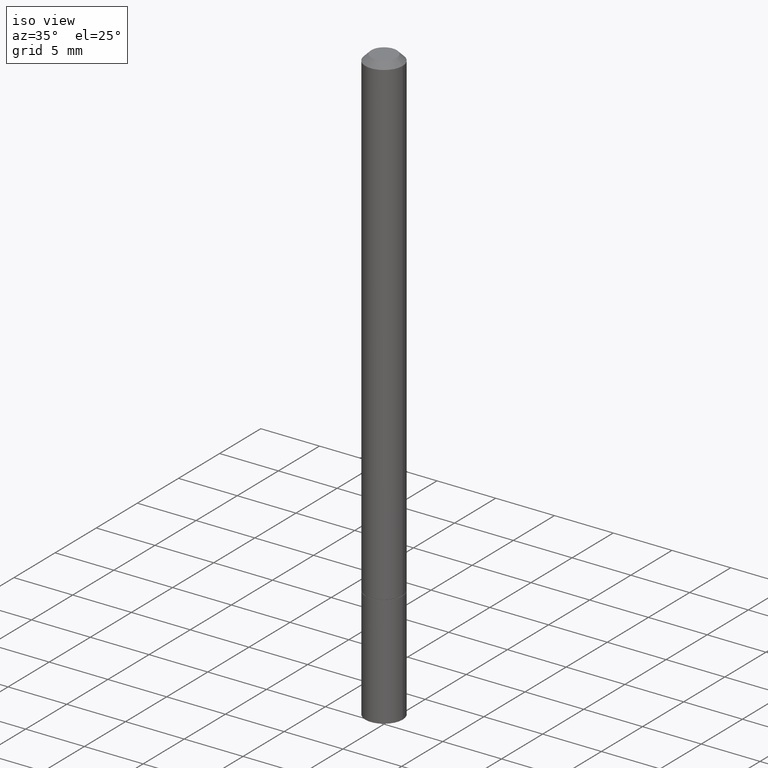
[diagram: clean part render]
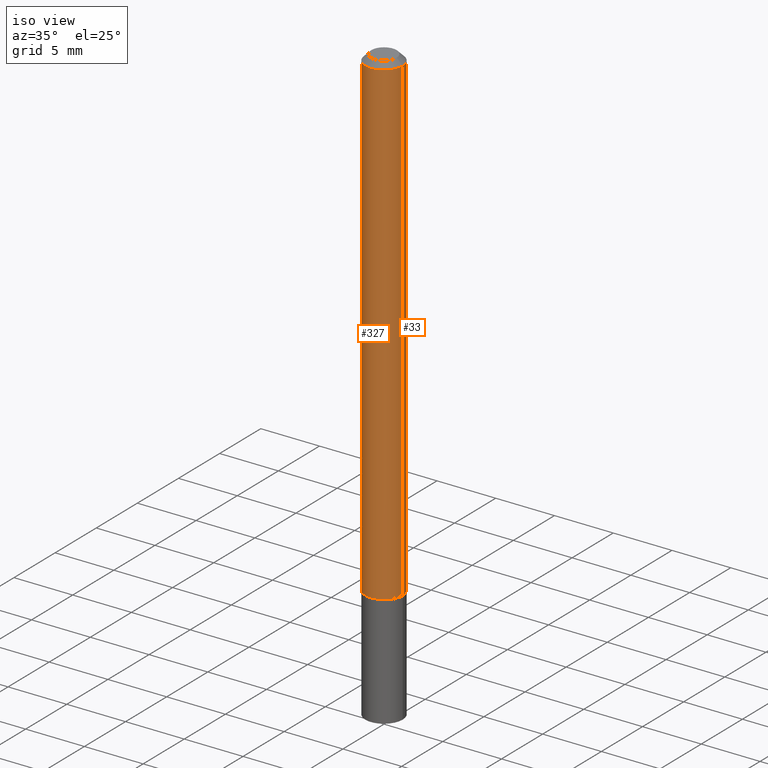
[diagram: same view with one multi-face feature highlighted, each face labeled with its STEP entity id]
A machine part, iso view. The highlighted faces form ONE feature: a constant-radius fillet chain: 2 tangent blend faces with common blend radius 1.5875 mm. The faces share edges in the B-rep.
Their STEP definitions:
[1] entity #33 (Cylinder):
#16 = VERTEX_POINT ( 'NONE', #274 ) ;
#20 = AXIS2_PLACEMENT_3D ( 'NONE', #211, #288, #155 ) ;
#31 = CARTESIAN_POINT ( 'NONE',  ( -0.06249999999999991673, 4.440892098500620245E-16, -3.074334431409311910E-30 ) ) ;
#33 = ADVANCED_FACE ( 'NONE', ( #104 ), #166, .T. ) ;
#37 = DIRECTION ( 'NONE',  ( -2.445468806185136877E-29, 3.491481338843145188E-15, 1.000000000000000000 ) ) ;
#38 = ORIENTED_EDGE ( 'NONE', *, *, #50, .F. ) ;
#44 = CARTESIAN_POINT ( 'NONE',  ( 0.000000000000000000, 0.000000000000000000, 0.000000000000000000 ) ) ;
#50 = EDGE_CURVE ( 'NONE', #16, #259, #73, .T. ) ;
#63 = EDGE_LOOP ( 'NONE', ( #268, #147, #215, #38 ) ) ;
#72 = DIRECTION ( 'NONE',  ( 1.000000000000000000, -6.982962677686266711E-15, 0.000000000000000000 ) ) ;
#73 = LINE ( 'NONE', #250, #219 ) ;
#78 = CARTESIAN_POINT ( 'NONE',  ( 4.890937612370274910E-31, -6.982962677686295307E-17, -0.02000000000000000736 ) ) ;
#79 = AXIS2_PLACEMENT_3D ( 'NONE', #78, #130, #72 ) ;
#95 = VERTEX_POINT ( 'NONE', #301 ) ;
#96 = CARTESIAN_POINT ( 'NONE',  ( -0.06250000000000001388, -2.425908450678998508E-15, -1.623999999999999888 ) ) ;
#104 = FACE_OUTER_BOUND ( 'NONE', #63, .T. ) ;
#130 = DIRECTION ( 'NONE',  ( -2.445468806185136597E-29, 3.491481338843145583E-15, 1.000000000000000000 ) ) ;
#138 = EDGE_CURVE ( 'NONE', #259, #95, #196, .T. ) ;
#147 = ORIENTED_EDGE ( 'NONE', *, *, #349, .T. ) ;
#155 = DIRECTION ( 'NONE',  ( 1.000000000000000000, -6.982962677686261189E-15, 0.000000000000000000 ) ) ;
#166 = CYLINDRICAL_SURFACE ( 'NONE', #202, 0.06249999999999991673 ) ;
#190 = DIRECTION ( 'NONE',  ( -2.445468806185136877E-29, 3.491481338843145188E-15, 1.000000000000000000 ) ) ;
#196 = CIRCLE ( 'NONE', #79, 0.06249999999999981265 ) ;
#202 = AXIS2_PLACEMENT_3D ( 'NONE', #44, #220, #324 ) ;
#209 = EDGE_CURVE ( 'NONE', #16, #341, #358, .T. ) ;
#211 = CARTESIAN_POINT ( 'NONE',  ( 3.971441341244661927E-29, -5.670165694281268417E-15, -1.623999999999999888 ) ) ;
#215 = ORIENTED_EDGE ( 'NONE', *, *, #138, .F. ) ;
#219 = VECTOR ( 'NONE', #190, 39.37007874015748143 ) ;
#220 = DIRECTION ( 'NONE',  ( -2.445468806185136597E-29, 3.491481338843145583E-15, 1.000000000000000000 ) ) ;
#250 = CARTESIAN_POINT ( 'NONE',  ( 0.06249999999999991673, -4.364351673553910778E-16, 3.047610484872455667E-30 ) ) ;
#252 = VECTOR ( 'NONE', #37, 39.37007874015748143 ) ;
#259 = VERTEX_POINT ( 'NONE', #346 ) ;
#268 = ORIENTED_EDGE ( 'NONE', *, *, #209, .T. ) ;
#274 = CARTESIAN_POINT ( 'NONE',  ( 0.06250000000000001388, -6.106600861636660086E-15, -1.623999999999999888 ) ) ;
#286 = LINE ( 'NONE', #31, #252 ) ;
#288 = DIRECTION ( 'NONE',  ( -2.445468806185136597E-29, 3.491481338843145583E-15, 1.000000000000000000 ) ) ;
#301 = CARTESIAN_POINT ( 'NONE',  ( -0.06249999999999981265, 3.666055405785273851E-16, -0.02000000000000000736 ) ) ;
#324 = DIRECTION ( 'NONE',  ( 1.000000000000000000, -6.982962677686266711E-15, 4.876176775795935793E-29 ) ) ;
#341 = VERTEX_POINT ( 'NONE', #96 ) ;
#346 = CARTESIAN_POINT ( 'NONE',  ( 0.06249999999999981265, -4.986107516375823445E-16, -0.02000000000000000736 ) ) ;
#349 = EDGE_CURVE ( 'NONE', #341, #95, #286, .T. ) ;
#358 = CIRCLE ( 'NONE', #20, 0.06250000000000001388 ) ;
[2] entity #327 (Cylinder):
#13 = EDGE_LOOP ( 'NONE', ( #165, #187, #210, #287 ) ) ;
#16 = VERTEX_POINT ( 'NONE', #274 ) ;
#31 = CARTESIAN_POINT ( 'NONE',  ( -0.06249999999999991673, 4.440892098500620245E-16, -3.074334431409311910E-30 ) ) ;
#37 = DIRECTION ( 'NONE',  ( -2.445468806185136877E-29, 3.491481338843145188E-15, 1.000000000000000000 ) ) ;
#41 = DIRECTION ( 'NONE',  ( -2.445468806185136597E-29, 3.491481338843145583E-15, 1.000000000000000000 ) ) ;
#50 = EDGE_CURVE ( 'NONE', #16, #259, #73, .T. ) ;
#62 = DIRECTION ( 'NONE',  ( 1.000000000000000000, -6.982962677686266711E-15, 4.876176775795935793E-29 ) ) ;
#73 = LINE ( 'NONE', #250, #219 ) ;
#76 = EDGE_CURVE ( 'NONE', #341, #16, #140, .T. ) ;
#95 = VERTEX_POINT ( 'NONE', #301 ) ;
#96 = CARTESIAN_POINT ( 'NONE',  ( -0.06250000000000001388, -2.425908450678998508E-15, -1.623999999999999888 ) ) ;
#101 = CARTESIAN_POINT ( 'NONE',  ( 3.971441341244661927E-29, -5.670165694281268417E-15, -1.623999999999999888 ) ) ;
#127 = FACE_OUTER_BOUND ( 'NONE', #13, .T. ) ;
#131 = AXIS2_PLACEMENT_3D ( 'NONE', #188, #41, #245 ) ;
#140 = CIRCLE ( 'NONE', #325, 0.06250000000000001388 ) ;
#141 = EDGE_CURVE ( 'NONE', #95, #259, #284, .T. ) ;
#165 = ORIENTED_EDGE ( 'NONE', *, *, #349, .F. ) ;
#179 = CYLINDRICAL_SURFACE ( 'NONE', #326, 0.06249999999999991673 ) ;
#187 = ORIENTED_EDGE ( 'NONE', *, *, #76, .T. ) ;
#188 = CARTESIAN_POINT ( 'NONE',  ( 4.890937612370274910E-31, -6.982962677686295307E-17, -0.02000000000000000736 ) ) ;
#190 = DIRECTION ( 'NONE',  ( -2.445468806185136877E-29, 3.491481338843145188E-15, 1.000000000000000000 ) ) ;
#210 = ORIENTED_EDGE ( 'NONE', *, *, #50, .T. ) ;
#219 = VECTOR ( 'NONE', #190, 39.37007874015748143 ) ;
#245 = DIRECTION ( 'NONE',  ( 1.000000000000000000, -6.982962677686266711E-15, 0.000000000000000000 ) ) ;
#250 = CARTESIAN_POINT ( 'NONE',  ( 0.06249999999999991673, -4.364351673553910778E-16, 3.047610484872455667E-30 ) ) ;
#252 = VECTOR ( 'NONE', #37, 39.37007874015748143 ) ;
#259 = VERTEX_POINT ( 'NONE', #346 ) ;
#274 = CARTESIAN_POINT ( 'NONE',  ( 0.06250000000000001388, -6.106600861636660086E-15, -1.623999999999999888 ) ) ;
#284 = CIRCLE ( 'NONE', #131, 0.06249999999999981265 ) ;
#286 = LINE ( 'NONE', #31, #252 ) ;
#287 = ORIENTED_EDGE ( 'NONE', *, *, #141, .F. ) ;
#290 = DIRECTION ( 'NONE',  ( -2.445468806185136597E-29, 3.491481338843145583E-15, 1.000000000000000000 ) ) ;
#299 = DIRECTION ( 'NONE',  ( -2.445468806185136597E-29, 3.491481338843145583E-15, 1.000000000000000000 ) ) ;
#301 = CARTESIAN_POINT ( 'NONE',  ( -0.06249999999999981265, 3.666055405785273851E-16, -0.02000000000000000736 ) ) ;
#315 = CARTESIAN_POINT ( 'NONE',  ( 0.000000000000000000, 0.000000000000000000, 0.000000000000000000 ) ) ;
#325 = AXIS2_PLACEMENT_3D ( 'NONE', #101, #299, #355 ) ;
#326 = AXIS2_PLACEMENT_3D ( 'NONE', #315, #290, #62 ) ;
#327 = ADVANCED_FACE ( 'NONE', ( #127 ), #179, .T. ) ;
#341 = VERTEX_POINT ( 'NONE', #96 ) ;
#346 = CARTESIAN_POINT ( 'NONE',  ( 0.06249999999999981265, -4.986107516375823445E-16, -0.02000000000000000736 ) ) ;
#349 = EDGE_CURVE ( 'NONE', #341, #95, #286, .T. ) ;
#355 = DIRECTION ( 'NONE',  ( 1.000000000000000000, -6.982962677686261189E-15, 0.000000000000000000 ) ) ;